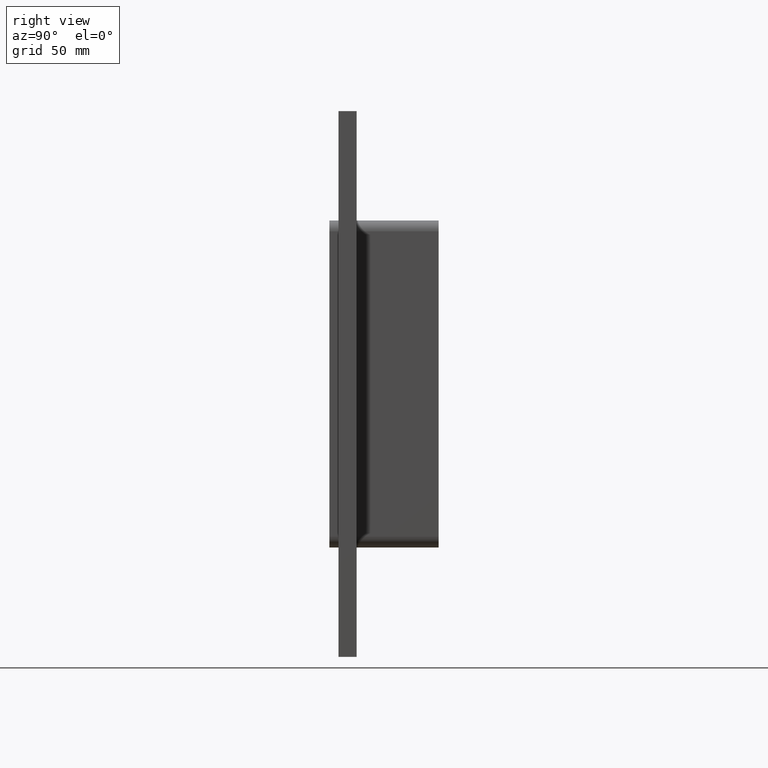
[diagram: clean part render]
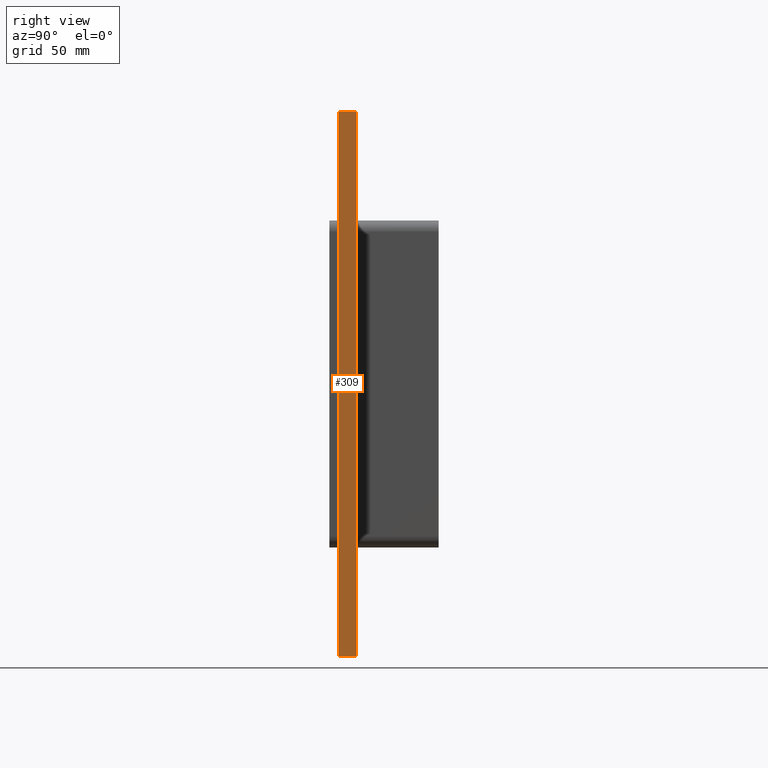
[diagram: same view with one face highlighted and labeled with its STEP entity id]
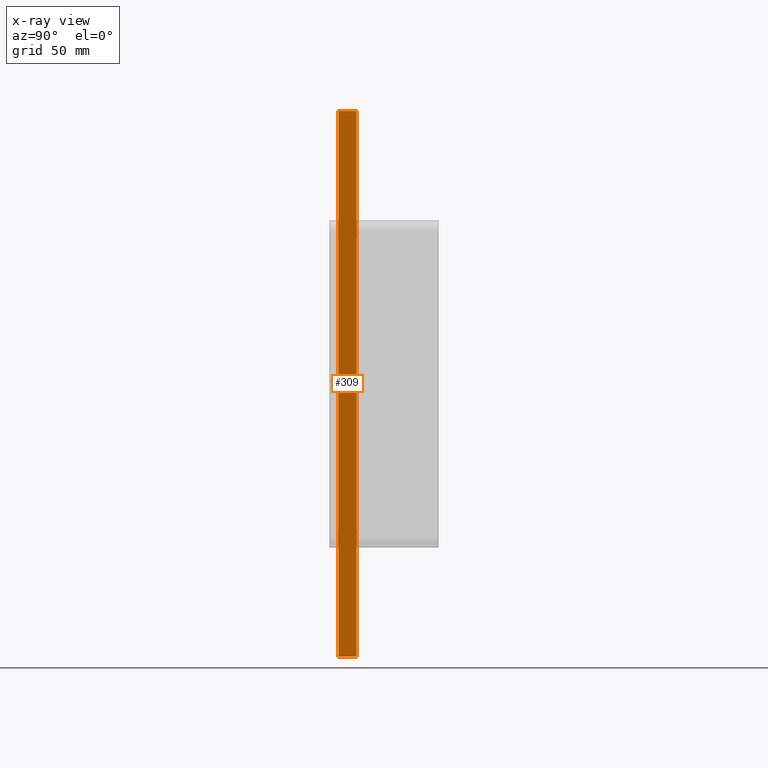
[diagram: x-ray of the same camera — body ghosted, the highlighted face saturated]
A machine part, right view. The second image highlights one B-rep face of the part: STEP entity #309.
The next image is the same camera in x-ray: the body ghosted, the highlighted face saturated — about 0% of this face is hidden behind the body in this view.
In plain terms, the highlighted planar face has unit normal (1, 0, 0).
Its self-contained STEP definition (entity closure, byte-faithful):
#73=CARTESIAN_POINT('',(130.25,10.0,-149.75000000000003));
#74=VERTEX_POINT('',#73);
#91=CARTESIAN_POINT('',(130.25,10.0,149.75));
#92=VERTEX_POINT('',#91);
#99=CARTESIAN_POINT('',(130.25,10.0,149.75));
#100=DIRECTION('',(0.0,0.0,-1.0));
#101=VECTOR('',#100,299.5);
#102=LINE('',#99,#101);
#103=EDGE_CURVE('',#92,#74,#102,.T.);
#183=CARTESIAN_POINT('',(130.25,0.0,-149.75000000000003));
#184=VERTEX_POINT('',#183);
#193=CARTESIAN_POINT('',(130.25,0.0,149.75));
#194=VERTEX_POINT('',#193);
#195=CARTESIAN_POINT('',(130.25,0.0,149.75));
#196=DIRECTION('',(0.0,0.0,-1.0));
#197=VECTOR('',#196,299.5);
#198=LINE('',#195,#197);
#199=EDGE_CURVE('',#194,#184,#198,.T.);
#288=CARTESIAN_POINT('',(130.25,0.0,149.75));
#289=DIRECTION('',(1.0,0.0,0.0));
#290=DIRECTION('',(0.0,0.0,-1.0));
#291=AXIS2_PLACEMENT_3D('',#288,#289,#290);
#292=PLANE('',#291);
#293=ORIENTED_EDGE('',*,*,#199,.T.);
#294=CARTESIAN_POINT('',(130.25,0.0,-149.75000000000003));
#295=DIRECTION('',(0.0,1.0,0.0));
#296=VECTOR('',#295,10.0);
#297=LINE('',#294,#296);
#298=EDGE_CURVE('',#184,#74,#297,.T.);
#299=ORIENTED_EDGE('',*,*,#298,.T.);
#300=ORIENTED_EDGE('',*,*,#103,.F.);
#301=CARTESIAN_POINT('',(130.25,0.0,149.75));
#302=DIRECTION('',(0.0,1.0,0.0));
#303=VECTOR('',#302,10.0);
#304=LINE('',#301,#303);
#305=EDGE_CURVE('',#194,#92,#304,.T.);
#306=ORIENTED_EDGE('',*,*,#305,.F.);
#307=EDGE_LOOP('',(#293,#299,#300,#306));
#308=FACE_OUTER_BOUND('',#307,.T.);
#309=ADVANCED_FACE('',(#308),#292,.T.);